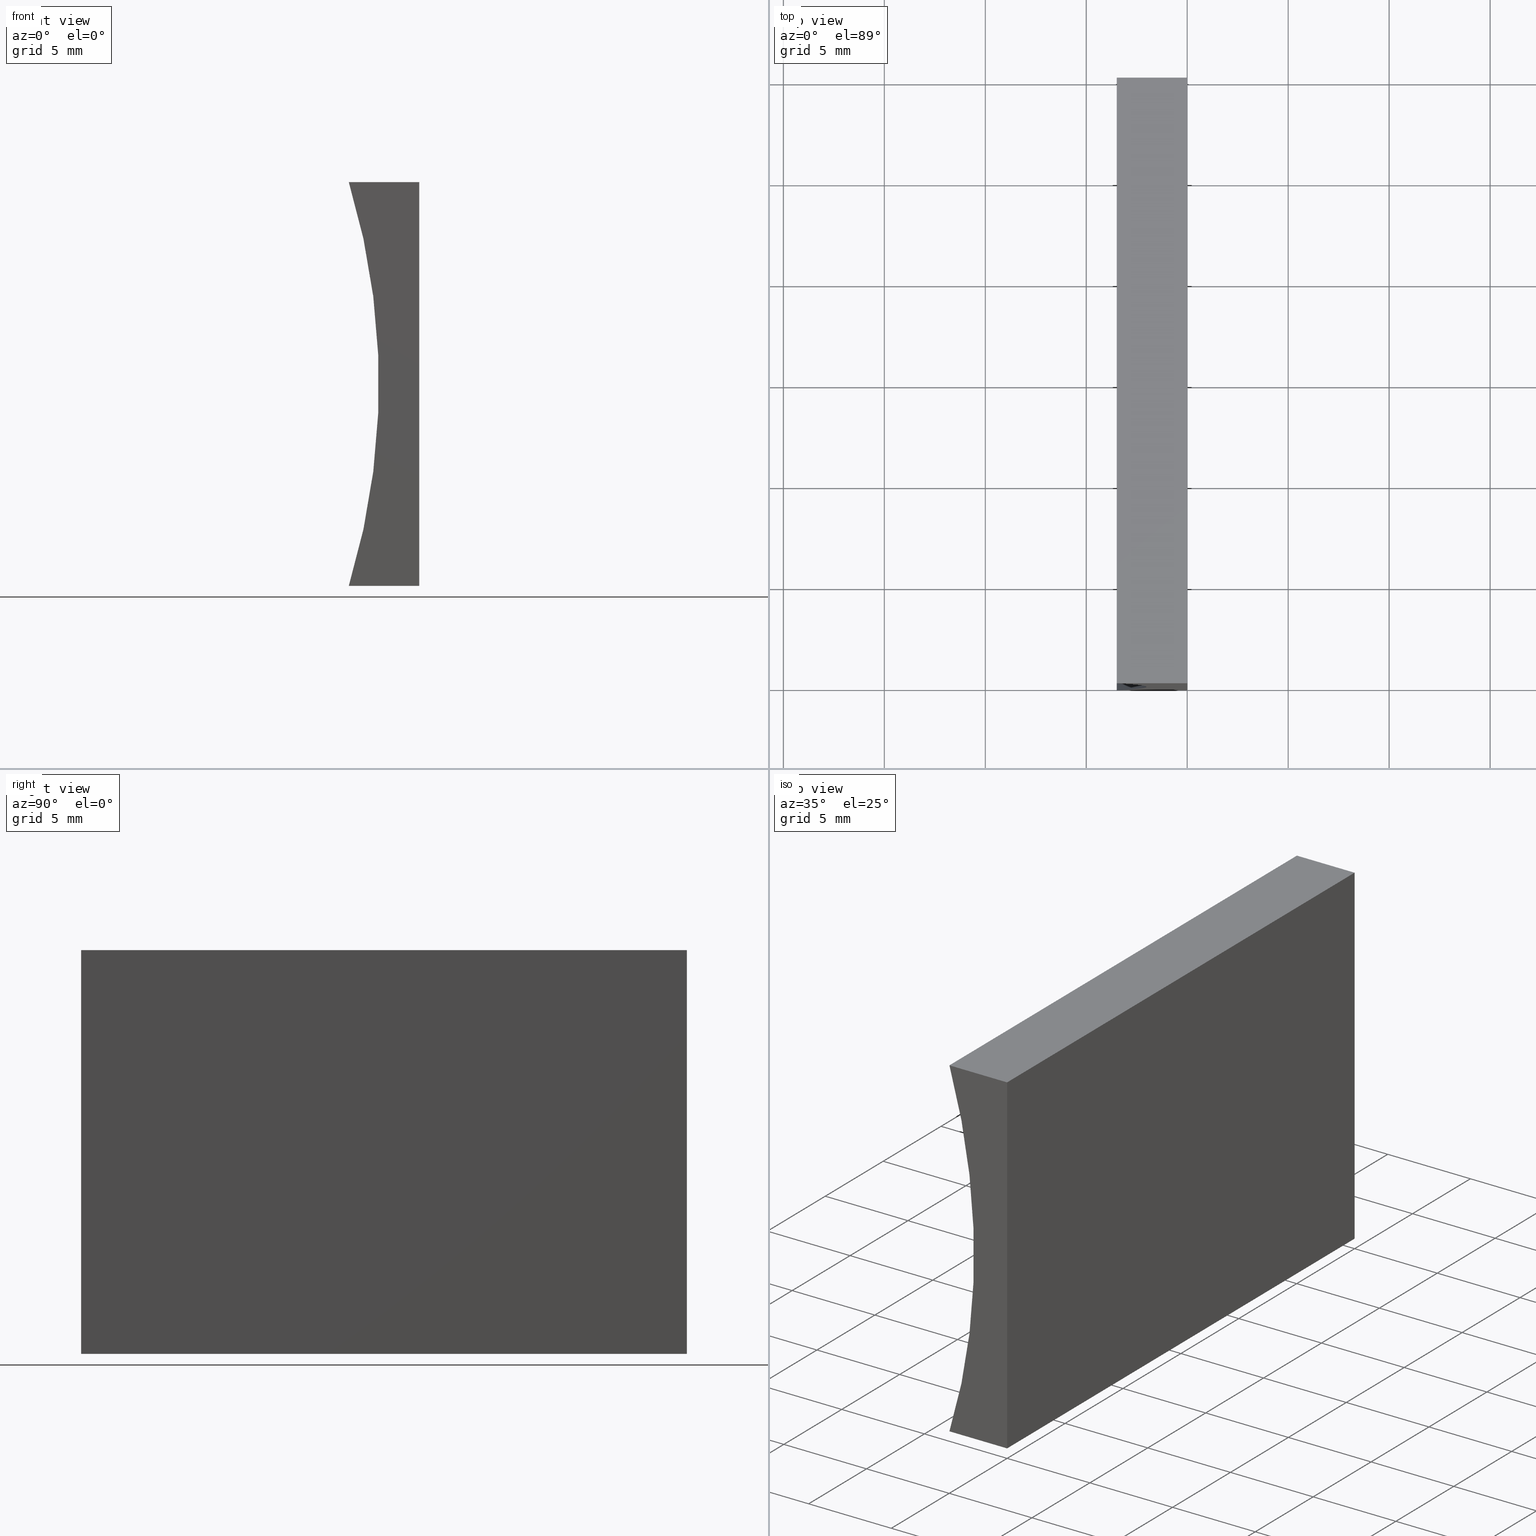
[diagram: canonical four-view strip — front | top / right | iso, engineering-drawing reading convention]
A machine part, canonical four-view strip (front | top / right | iso — engineering-drawing reading convention). The complete STEP part file that produces these views, byte-faithful:
ISO-10303-21;
HEADER;
FILE_DESCRIPTION (( 'STEP AP214' ),
    '1' );
FILE_NAME ('155488.STEP',
    '2019-07-04T03:03:12',
    ( 'user' ),
    ( '΢���й�' ),
    'SwSTEP 2.0',
    'SolidWorks 2016',
    '' );
FILE_SCHEMA (( 'AUTOMOTIVE_DESIGN' ));
ENDSEC;

DATA;
#1 = EDGE_CURVE ( 'NONE', #187, #111, #101, .T. ) ;
#2 = APPLICATION_CONTEXT ( 'automotive_design' ) ;
#3 = DIRECTION ( 'NONE',  ( -1.224646799147353200E-016, -0.0000000000000000000, -1.000000000000000000 ) ) ;
#4 = FILL_AREA_STYLE_COLOUR ( '', #8 ) ;
#5 = LINE ( 'NONE', #142, #27 ) ;
#6 = VERTEX_POINT ( 'NONE', #32 ) ;
#7 =( LENGTH_UNIT ( ) NAMED_UNIT ( * ) SI_UNIT ( .MILLI., .METRE. ) );
#8 = COLOUR_RGB ( '',1.000000000000000000, 1.000000000000000000, 1.000000000000000000 ) ;
#9 = DIRECTION ( 'NONE',  ( 0.0000000000000000000, -0.0000000000000000000, 1.000000000000000000 ) ) ;
#10 = PRESENTATION_LAYER_ASSIGNMENT (  '', '', ( #190 ) ) ;
#11 = STYLED_ITEM ( 'NONE', ( #35 ), #112 ) ;
#12 = CARTESIAN_POINT ( 'NONE',  ( 0.0000000000000000000, 0.0000000000000000000, 0.0000000000000000000 ) ) ;
#13 = DIRECTION ( 'NONE',  ( 9.947306013993727700E-016, 0.0000000000000000000, -1.000000000000000000 ) ) ;
#14 = VECTOR ( 'NONE', #160, 1000.000000000000000 ) ;
#15 = AXIS2_PLACEMENT_3D ( 'NONE', #125, #72, #9 ) ;
#16 = APPLICATION_PROTOCOL_DEFINITION ( 'draft international standard', 'automotive_design', 1998, #2 ) ;
#17 = LINE ( 'NONE', #92, #14 ) ;
#18 = EDGE_CURVE ( 'NONE', #6, #87, #71, .T. ) ;
#19 = APPLICATION_PROTOCOL_DEFINITION ( 'draft international standard', 'automotive_design', 1998, #202 ) ;
#20 = DIRECTION ( 'NONE',  ( -1.000000000000000000, 0.0000000000000000000, 1.989461202798745500E-015 ) ) ;
#21 = DIRECTION ( 'NONE',  ( 0.0000000000000000000, 1.000000000000000000, 0.0000000000000000000 ) ) ;
#22 = ORIENTED_EDGE ( 'NONE', *, *, #1, .F. ) ;
#23 = CYLINDRICAL_SURFACE ( 'NONE', #133, 34.34999999999999400 ) ;
#24 =( NAMED_UNIT ( * ) SI_UNIT ( $, .STERADIAN. ) SOLID_ANGLE_UNIT ( ) );
#25 = CARTESIAN_POINT ( 'NONE',  ( 0.0000000000000000000, 30.00000000000000000, 0.0000000000000000000 ) ) ;
#26 = ADVANCED_FACE ( 'NONE', ( #169 ), #23, .F. ) ;
#27 = VECTOR ( 'NONE', #139, 1000.000000000000000 ) ;
#28 =( NAMED_UNIT ( * ) SI_UNIT ( $, .STERADIAN. ) SOLID_ANGLE_UNIT ( ) );
#29 = CARTESIAN_POINT ( 'NONE',  ( 0.0000000000000000000, 30.00000000000000000, 0.0000000000000000000 ) ) ;
#30 = ORIENTED_EDGE ( 'NONE', *, *, #18, .F. ) ;
#31 = PLANE ( 'NONE',  #166 ) ;
#32 = CARTESIAN_POINT ( 'NONE',  ( -3.487825695794261700, 30.00000000000000000, 19.99999999999999600 ) ) ;
#33 = SHAPE_DEFINITION_REPRESENTATION ( #141, #154 ) ;
#34 = ORIENTED_EDGE ( 'NONE', *, *, #159, .F. ) ;
#35 = PRESENTATION_STYLE_ASSIGNMENT (( #43 ) ) ;
#36 =( LENGTH_UNIT ( ) NAMED_UNIT ( * ) SI_UNIT ( .MILLI., .METRE. ) );
#37 = PRODUCT ( '155488', '155488', '', ( #127 ) ) ;
#38 = PRODUCT_DEFINITION_CONTEXT ( 'detailed design', #2, 'design' ) ;
#39 = EDGE_CURVE ( 'NONE', #201, #79, #93, .T. ) ;
#40 = ADVANCED_FACE ( 'NONE', ( #193 ), #158, .F. ) ;
#41 = DIRECTION ( 'NONE',  ( -0.0000000000000000000, -1.000000000000000000, -0.0000000000000000000 ) ) ;
#42 = VECTOR ( 'NONE', #120, 1000.000000000000000 ) ;
#43 = SURFACE_STYLE_USAGE ( .BOTH. , #119 ) ;
#44 = ORIENTED_EDGE ( 'NONE', *, *, #85, .F. ) ;
#45 = PRESENTATION_LAYER_ASSIGNMENT (  '', '', ( #11 ) ) ;
#46 = DIRECTION ( 'NONE',  ( 1.000000000000000000, -0.0000000000000000000, 9.947306013993727700E-016 ) ) ;
#47 = VECTOR ( 'NONE', #56, 1000.000000000000000 ) ;
#48 = ORIENTED_EDGE ( 'NONE', *, *, #18, .T. ) ;
#49 = UNCERTAINTY_MEASURE_WITH_UNIT (LENGTH_MEASURE( 1.000000000000000100E-005 ), #36, 'distance_accuracy_value', 'NONE');
#50 = ORIENTED_EDGE ( 'NONE', *, *, #185, .T. ) ;
#51 = PRESENTATION_STYLE_ASSIGNMENT (( #177 ) ) ;
#52 = PLANE ( 'NONE',  #15 ) ;
#53 = ORIENTED_EDGE ( 'NONE', *, *, #39, .F. ) ;
#54 = VERTEX_POINT ( 'NONE', #74 ) ;
#55 = PRODUCT_RELATED_PRODUCT_CATEGORY ( 'part', '', ( #37 ) ) ;
#56 = DIRECTION ( 'NONE',  ( -0.0000000000000000000, -1.000000000000000000, -0.0000000000000000000 ) ) ;
#57 = ORIENTED_EDGE ( 'NONE', *, *, #185, .F. ) ;
#58 = DIRECTION ( 'NONE',  ( 0.0000000000000000000, 0.0000000000000000000, 1.000000000000000000 ) ) ;
#59 = AXIS2_PLACEMENT_3D ( 'NONE', #76, #63, #118 ) ;
#60 = DIRECTION ( 'NONE',  ( -1.000000000000000000, 0.0000000000000000000, 1.224646799147353200E-016 ) ) ;
#61 = VERTEX_POINT ( 'NONE', #67 ) ;
#62 = ORIENTED_EDGE ( 'NONE', *, *, #200, .T. ) ;
#63 = DIRECTION ( 'NONE',  ( -0.0000000000000000000, -1.000000000000000000, -0.0000000000000000000 ) ) ;
#64 = FILL_AREA_STYLE ('',( #97 ) ) ;
#65 = ORIENTED_EDGE ( 'NONE', *, *, #1, .T. ) ;
#66 = PRODUCT_DEFINITION_FORMATION_WITH_SPECIFIED_SOURCE ( '�κ�', '', #37, .NOT_KNOWN. ) ;
#67 = CARTESIAN_POINT ( 'NONE',  ( -3.487825695794269300, 30.00000000000000000, 6.938893903907228400E-015 ) ) ;
#68 = DIRECTION ( 'NONE',  ( -0.0000000000000000000, -1.000000000000000000, -0.0000000000000000000 ) ) ;
#69 = FACE_OUTER_BOUND ( 'NONE', #191, .T. ) ;
#70 = CARTESIAN_POINT ( 'NONE',  ( 0.0000000000000000000, 30.00000000000000000, 0.0000000000000000000 ) ) ;
#71 = LINE ( 'NONE', #192, #135 ) ;
#72 = DIRECTION ( 'NONE',  ( 0.0000000000000000000, 1.000000000000000000, 0.0000000000000000000 ) ) ;
#73 = EDGE_LOOP ( 'NONE', ( #165, #34, #22, #100 ) ) ;
#74 = CARTESIAN_POINT ( 'NONE',  ( -3.487825695794269300, 0.0000000000000000000, 6.938893903907228400E-015 ) ) ;
#75 = VECTOR ( 'NONE', #131, 1000.000000000000000 ) ;
#76 = CARTESIAN_POINT ( 'NONE',  ( -36.35000000000000100, 30.00000000000000000, 10.00000000000000700 ) ) ;
#77 = CARTESIAN_POINT ( 'NONE',  ( 0.0000000000000000000, 30.00000000000000000, 0.0000000000000000000 ) ) ;
#78 = DIRECTION ( 'NONE',  ( 1.989461202798745500E-015, -0.0000000000000000000, 1.000000000000000000 ) ) ;
#79 = VERTEX_POINT ( 'NONE', #129 ) ;
#80 = CARTESIAN_POINT ( 'NONE',  ( 2.449293598294706500E-015, 0.0000000000000000000, 20.00000000000000000 ) ) ;
#81 = AXIS2_PLACEMENT_3D ( 'NONE', #161, #13, #164 ) ;
#82 = ORIENTED_EDGE ( 'NONE', *, *, #171, .T. ) ;
#83 = LINE ( 'NONE', #29, #91 ) ;
#84 = CARTESIAN_POINT ( 'NONE',  ( -3.487825695794261700, 0.0000000000000000000, 19.99999999999999600 ) ) ;
#85 = EDGE_CURVE ( 'NONE', #61, #6, #147, .T. ) ;
#86 = ORIENTED_EDGE ( 'NONE', *, *, #146, .T. ) ;
#87 = VERTEX_POINT ( 'NONE', #178 ) ;
#88 = DIRECTION ( 'NONE',  ( -0.0000000000000000000, -1.000000000000000000, -0.0000000000000000000 ) ) ;
#89 = ORIENTED_EDGE ( 'NONE', *, *, #155, .T. ) ;
#90 = LINE ( 'NONE', #156, #47 ) ;
#91 = VECTOR ( 'NONE', #20, 1000.000000000000000 ) ;
#92 = CARTESIAN_POINT ( 'NONE',  ( -3.487825695794269300, 30.00000000000000000, 6.938893903907228400E-015 ) ) ;
#93 = LINE ( 'NONE', #122, #104 ) ;
#94 = ORIENTED_EDGE ( 'NONE', *, *, #171, .F. ) ;
#95 = SURFACE_STYLE_FILL_AREA ( #140 ) ;
#96 = LINE ( 'NONE', #12, #42 ) ;
#97 = FILL_AREA_STYLE_COLOUR ( '', #109 ) ;
#98 = CARTESIAN_POINT ( 'NONE',  ( -36.35000000000000100, 0.0000000000000000000, 10.00000000000000700 ) ) ;
#99 = ORIENTED_EDGE ( 'NONE', *, *, #146, .F. ) ;
#100 = ORIENTED_EDGE ( 'NONE', *, *, #200, .F. ) ;
#101 = LINE ( 'NONE', #80, #75 ) ;
#102 = EDGE_LOOP ( 'NONE', ( #89, #94, #57, #182 ) ) ;
#103 = PLANE ( 'NONE',  #152 ) ;
#104 = VECTOR ( 'NONE', #68, 1000.000000000000000 ) ;
#105 = VECTOR ( 'NONE', #186, 1000.000000000000000 ) ;
#106 = CARTESIAN_POINT ( 'NONE',  ( 2.449293598294706500E-015, 30.00000000000000000, 20.00000000000000000 ) ) ;
#107 = ORIENTED_EDGE ( 'NONE', *, *, #170, .F. ) ;
#108 = ORIENTED_EDGE ( 'NONE', *, *, #159, .T. ) ;
#109 = COLOUR_RGB ( '',1.000000000000000000, 1.000000000000000000, 1.000000000000000000 ) ;
#110 = EDGE_LOOP ( 'NONE', ( #62, #107, #44, #82 ) ) ;
#111 = VERTEX_POINT ( 'NONE', #148 ) ;
#112 = MANIFOLD_SOLID_BREP ( '͹̨-����1', #151 ) ;
#113 = PLANE ( 'NONE',  #81 ) ;
#114 = CARTESIAN_POINT ( 'NONE',  ( -36.35000000000000100, 0.0000000000000000000, 10.00000000000000700 ) ) ;
#115 = ORIENTED_EDGE ( 'NONE', *, *, #181, .F. ) ;
#116 =( LENGTH_UNIT ( ) NAMED_UNIT ( * ) SI_UNIT ( .MILLI., .METRE. ) );
#117 =( GEOMETRIC_REPRESENTATION_CONTEXT ( 3 ) GLOBAL_UNCERTAINTY_ASSIGNED_CONTEXT ( ( #128 ) ) GLOBAL_UNIT_ASSIGNED_CONTEXT ( ( #116, #168, #24 ) ) REPRESENTATION_CONTEXT ( 'NONE', 'WORKASPACE' ) );
#118 = DIRECTION ( 'NONE',  ( 0.0000000000000000000, 0.0000000000000000000, 1.000000000000000000 ) ) ;
#119 = SURFACE_SIDE_STYLE ('',( #183 ) ) ;
#120 = DIRECTION ( 'NONE',  ( -1.224646799147353200E-016, -0.0000000000000000000, -1.000000000000000000 ) ) ;
#121 = FACE_OUTER_BOUND ( 'NONE', #102, .T. ) ;
#122 = CARTESIAN_POINT ( 'NONE',  ( 0.0000000000000000000, 30.00000000000000000, 0.0000000000000000000 ) ) ;
#123 =( NAMED_UNIT ( * ) PLANE_ANGLE_UNIT ( ) SI_UNIT ( $, .RADIAN. ) );
#124 = MECHANICAL_DESIGN_GEOMETRIC_PRESENTATION_REPRESENTATION (  '', ( #190 ), #117 ) ;
#125 = CARTESIAN_POINT ( 'NONE',  ( -36.35000000000000100, 30.00000000000000000, 10.00000000000000700 ) ) ;
#126 = ORIENTED_EDGE ( 'NONE', *, *, #170, .T. ) ;
#127 = PRODUCT_CONTEXT ( 'NONE', #202, 'mechanical' ) ;
#128 = UNCERTAINTY_MEASURE_WITH_UNIT (LENGTH_MEASURE( 1.000000000000000100E-005 ), #116, 'distance_accuracy_value', 'NONE');
#129 = CARTESIAN_POINT ( 'NONE',  ( 0.0000000000000000000, 0.0000000000000000000, 0.0000000000000000000 ) ) ;
#130 = MECHANICAL_DESIGN_GEOMETRIC_PRESENTATION_REPRESENTATION (  '', ( #11 ), #204 ) ;
#131 = DIRECTION ( 'NONE',  ( 1.000000000000000000, -0.0000000000000000000, 9.947306013993727700E-016 ) ) ;
#132 = EDGE_LOOP ( 'NONE', ( #108, #53, #115, #86 ) ) ;
#133 = AXIS2_PLACEMENT_3D ( 'NONE', #144, #88, #150 ) ;
#134 = VECTOR ( 'NONE', #3, 1000.000000000000000 ) ;
#135 = VECTOR ( 'NONE', #46, 1000.000000000000000 ) ;
#136 =( NAMED_UNIT ( * ) SI_UNIT ( $, .STERADIAN. ) SOLID_ANGLE_UNIT ( ) );
#137 = CIRCLE ( 'NONE', #173, 34.34999999999999400 ) ;
#138 = AXIS2_PLACEMENT_3D ( 'NONE', #175, #60, #194 ) ;
#139 = DIRECTION ( 'NONE',  ( -1.000000000000000000, 0.0000000000000000000, 1.989461202798745500E-015 ) ) ;
#140 = FILL_AREA_STYLE ('',( #4 ) ) ;
#141 = PRODUCT_DEFINITION_SHAPE ( 'NONE', 'NONE',  #179 ) ;
#142 = CARTESIAN_POINT ( 'NONE',  ( 0.0000000000000000000, 0.0000000000000000000, 0.0000000000000000000 ) ) ;
#143 = DIRECTION ( 'NONE',  ( 1.000000000000000000, 0.0000000000000000000, 0.0000000000000000000 ) ) ;
#144 = CARTESIAN_POINT ( 'NONE',  ( -36.35000000000000100, 30.00000000000000000, 10.00000000000000700 ) ) ;
#145 =( GEOMETRIC_REPRESENTATION_CONTEXT ( 3 ) GLOBAL_UNCERTAINTY_ASSIGNED_CONTEXT ( ( #49 ) ) GLOBAL_UNIT_ASSIGNED_CONTEXT ( ( #36, #149, #136 ) ) REPRESENTATION_CONTEXT ( 'NONE', 'WORKASPACE' ) );
#146 = EDGE_CURVE ( 'NONE', #87, #111, #203, .T. ) ;
#147 = CIRCLE ( 'NONE', #59, 34.34999999999999400 ) ;
#148 = CARTESIAN_POINT ( 'NONE',  ( 2.449293598294706500E-015, 0.0000000000000000000, 20.00000000000000000 ) ) ;
#149 =( NAMED_UNIT ( * ) PLANE_ANGLE_UNIT ( ) SI_UNIT ( $, .RADIAN. ) );
#150 = DIRECTION ( 'NONE',  ( 0.0000000000000000000, 0.0000000000000000000, -1.000000000000000000 ) ) ;
#151 = CLOSED_SHELL ( 'NONE', ( #196, #26, #184, #40, #167, #198 ) ) ;
#152 = AXIS2_PLACEMENT_3D ( 'NONE', #98, #21, #195 ) ;
#153 = DIRECTION ( 'NONE',  ( 1.000000000000000000, 0.0000000000000000000, -1.989461202798745500E-015 ) ) ;
#154 = ADVANCED_BREP_SHAPE_REPRESENTATION ( '155488', ( #112, #197 ), #145 ) ;
#155 = EDGE_CURVE ( 'NONE', #79, #54, #5, .T. ) ;
#156 = CARTESIAN_POINT ( 'NONE',  ( -3.487825695794261700, 30.00000000000000000, 19.99999999999999600 ) ) ;
#157 = UNCERTAINTY_MEASURE_WITH_UNIT (LENGTH_MEASURE( 1.000000000000000100E-005 ), #7, 'distance_accuracy_value', 'NONE');
#158 = PLANE ( 'NONE',  #138 ) ;
#159 = EDGE_CURVE ( 'NONE', #111, #79, #96, .T. ) ;
#160 = DIRECTION ( 'NONE',  ( -0.0000000000000000000, -1.000000000000000000, -0.0000000000000000000 ) ) ;
#161 = CARTESIAN_POINT ( 'NONE',  ( 2.449293598294706500E-015, 30.00000000000000000, 20.00000000000000000 ) ) ;
#162 = DIRECTION ( 'NONE',  ( 0.0000000000000000000, 0.0000000000000000000, 1.000000000000000000 ) ) ;
#163 = FACE_OUTER_BOUND ( 'NONE', #176, .T. ) ;
#164 = DIRECTION ( 'NONE',  ( -1.000000000000000000, 0.0000000000000000000, -9.947306013993727700E-016 ) ) ;
#165 = ORIENTED_EDGE ( 'NONE', *, *, #155, .F. ) ;
#166 = AXIS2_PLACEMENT_3D ( 'NONE', #77, #78, #153 ) ;
#167 = ADVANCED_FACE ( 'NONE', ( #163 ), #52, .T. ) ;
#168 =( NAMED_UNIT ( * ) PLANE_ANGLE_UNIT ( ) SI_UNIT ( $, .RADIAN. ) );
#169 = FACE_OUTER_BOUND ( 'NONE', #110, .T. ) ;
#170 = EDGE_CURVE ( 'NONE', #6, #187, #90, .T. ) ;
#171 = EDGE_CURVE ( 'NONE', #61, #54, #17, .T. ) ;
#172 = ORIENTED_EDGE ( 'NONE', *, *, #181, .T. ) ;
#173 = AXIS2_PLACEMENT_3D ( 'NONE', #114, #41, #162 ) ;
#174 = LINE ( 'NONE', #25, #134 ) ;
#175 = CARTESIAN_POINT ( 'NONE',  ( 0.0000000000000000000, 30.00000000000000000, 0.0000000000000000000 ) ) ;
#176 = EDGE_LOOP ( 'NONE', ( #50, #189, #48, #172 ) ) ;
#177 = SURFACE_STYLE_USAGE ( .BOTH. , #180 ) ;
#178 = CARTESIAN_POINT ( 'NONE',  ( 2.449293598294706500E-015, 30.00000000000000000, 20.00000000000000000 ) ) ;
#179 = PRODUCT_DEFINITION ( 'δ֪', '', #66, #38 ) ;
#180 = SURFACE_SIDE_STYLE ('',( #95 ) ) ;
#181 = EDGE_CURVE ( 'NONE', #87, #201, #174, .T. ) ;
#182 = ORIENTED_EDGE ( 'NONE', *, *, #39, .T. ) ;
#183 = SURFACE_STYLE_FILL_AREA ( #64 ) ;
#184 = ADVANCED_FACE ( 'NONE', ( #69 ), #113, .F. ) ;
#185 = EDGE_CURVE ( 'NONE', #201, #61, #83, .T. ) ;
#186 = DIRECTION ( 'NONE',  ( -0.0000000000000000000, -1.000000000000000000, -0.0000000000000000000 ) ) ;
#187 = VERTEX_POINT ( 'NONE', #84 ) ;
#188 = FACE_OUTER_BOUND ( 'NONE', #73, .T. ) ;
#189 = ORIENTED_EDGE ( 'NONE', *, *, #85, .T. ) ;
#190 = STYLED_ITEM ( 'NONE', ( #51 ), #154 ) ;
#191 = EDGE_LOOP ( 'NONE', ( #65, #99, #30, #126 ) ) ;
#192 = CARTESIAN_POINT ( 'NONE',  ( 2.449293598294706500E-015, 30.00000000000000000, 20.00000000000000000 ) ) ;
#193 = FACE_OUTER_BOUND ( 'NONE', #132, .T. ) ;
#194 = DIRECTION ( 'NONE',  ( 1.224646799147353200E-016, 0.0000000000000000000, 1.000000000000000000 ) ) ;
#195 = DIRECTION ( 'NONE',  ( 0.0000000000000000000, -0.0000000000000000000, 1.000000000000000000 ) ) ;
#196 = ADVANCED_FACE ( 'NONE', ( #121 ), #31, .F. ) ;
#197 = AXIS2_PLACEMENT_3D ( 'NONE', #199, #58, #143 ) ;
#198 = ADVANCED_FACE ( 'NONE', ( #188 ), #103, .F. ) ;
#199 = CARTESIAN_POINT ( 'NONE',  ( 0.0000000000000000000, 0.0000000000000000000, 0.0000000000000000000 ) ) ;
#200 = EDGE_CURVE ( 'NONE', #54, #187, #137, .T. ) ;
#201 = VERTEX_POINT ( 'NONE', #70 ) ;
#202 = APPLICATION_CONTEXT ( 'automotive_design' ) ;
#203 = LINE ( 'NONE', #106, #105 ) ;
#204 =( GEOMETRIC_REPRESENTATION_CONTEXT ( 3 ) GLOBAL_UNCERTAINTY_ASSIGNED_CONTEXT ( ( #157 ) ) GLOBAL_UNIT_ASSIGNED_CONTEXT ( ( #7, #123, #28 ) ) REPRESENTATION_CONTEXT ( 'NONE', 'WORKASPACE' ) );
ENDSEC;
END-ISO-10303-21;
